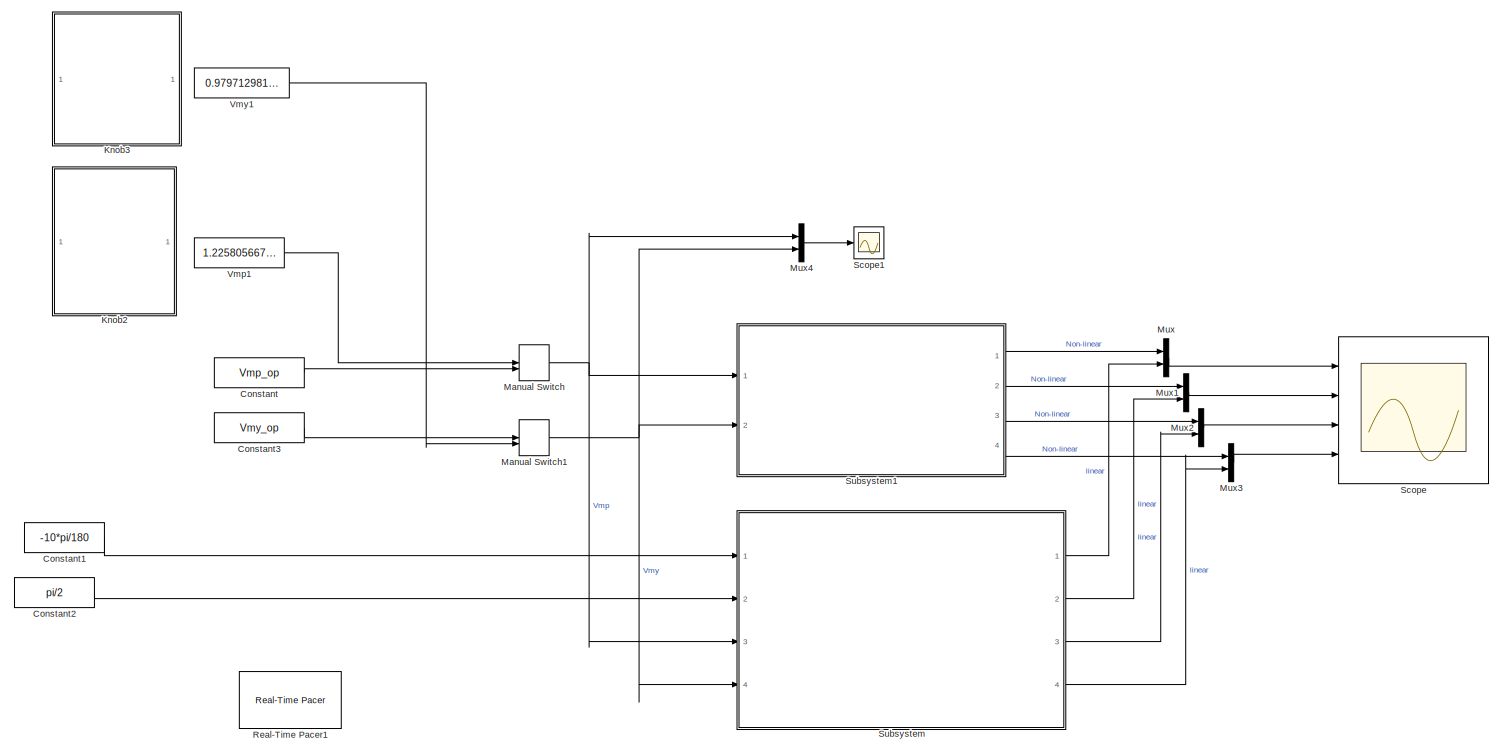
[diagram: root canvas - part 1/1, most of the canvas]
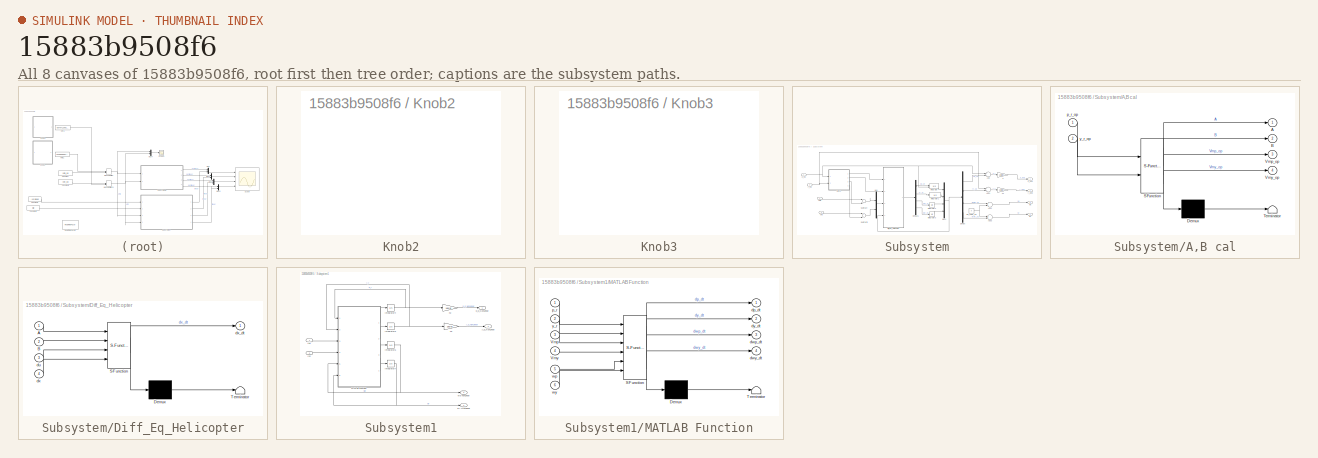
[diagram: thumbnail index - all 8 canvases of the model, root first then tree order]
MODEL slx_15883b9508f6
KIND model
CONFIG AbsTol = auto
CONFIG EnableMultiTasking = off
CONFIG FixedStep = auto
CONFIG MaxStep = auto
CONFIG MinStep = auto
CONFIG RelTol = 1e-3
CONFIG SampleTimeConstraint = Unconstrained
CONFIG Solver = VariableStepAuto
CONFIG SolverName = VariableStepAuto
CONFIG StartTime = 0.0
CONFIG StopTime = inf
BLOCK [Constant] Constant
  Value = Vmp_op
BLOCK [Constant] Constant1
  Value = -10*pi/180
BLOCK [Constant] Constant2
  Value = pi/2
BLOCK [Constant] Constant3
  Value = Vmy_op
BLOCK [SubSystem] Knob2
  DialogController = hmiCreateDDGDialog
  IsWebBlock = on
  MaskHideContents = on
  Ports = []
  RequestExecContextInheritance = off
BLOCK [SubSystem] Knob3
  DialogController = hmiCreateDDGDialog
  IsWebBlock = on
  MaskHideContents = on
  Ports = []
  RequestExecContextInheritance = off
BLOCK [ManualSwitch] Manual Switch
BLOCK [ManualSwitch] Manual Switch1
  CurrentSetting = 0
BLOCK [Mux] Mux
  DisplayOption = bar
  Inputs = 2
  Ports = [2, 1]
BLOCK [Mux] Mux1
  DisplayOption = bar
  Inputs = 2
  Ports = [2, 1]
BLOCK [Mux] Mux2
  DisplayOption = bar
  Inputs = 2
  Ports = [2, 1]
BLOCK [Mux] Mux3
  DisplayOption = bar
  Inputs = 2
  Ports = [2, 1]
BLOCK [Mux] Mux4
  DisplayOption = bar
  Inputs = 2
  Ports = [2, 1]
BLOCK [Reference] Real-Time Pacer1  REF=realtime_pacer_lib/Real-Time Pacer
  Ports = []
  SourceBlock = realtime_pacer_lib/Real-Time Pacer
  SourceType = RealTime_Pacer
BLOCK [Scope] Scope
  Floating = off
  NumInputPorts = 4
  Ports = [4]
  ScopeSpecificationString = Simulink.scopes.TimeScopeBlockCfg('CurrentConfiguration', extmgr.ConfigurationSet(extmgr.Configuration('Core','General UI',true,'FigureColor',[1 1 1]),extmgr.Configuration('Core','Source UI',true),extmgr.Configuration('Sources','WiredSimulink',true),extmgr.Configuration('Visuals','Time Domain',true,'SerializedDisplays',{struct('MinYLimReal','-50','MaxYLimReal','50','YLabelReal','Pitch Angle (Degre...<+7195ch>
BLOCK [Scope] Scope1
  Floating = off
  NumInputPorts = 1
  Ports = [1]
  ScopeSpecificationString = Simulink.scopes.TimeScopeBlockCfg('CurrentConfiguration', extmgr.ConfigurationSet(extmgr.Configuration('Core','General UI',true,'FigureColor',[1 1 1]),extmgr.Configuration('Core','Source UI',true),extmgr.Configuration('Sources','WiredSimulink',true,'DataLoggingVariableName','ScopeData1'),extmgr.Configuration('Visuals','Time Domain',true,'SerializedDisplays',{struct('MinYLimReal','0.52565','MaxYLim...<+1791ch>
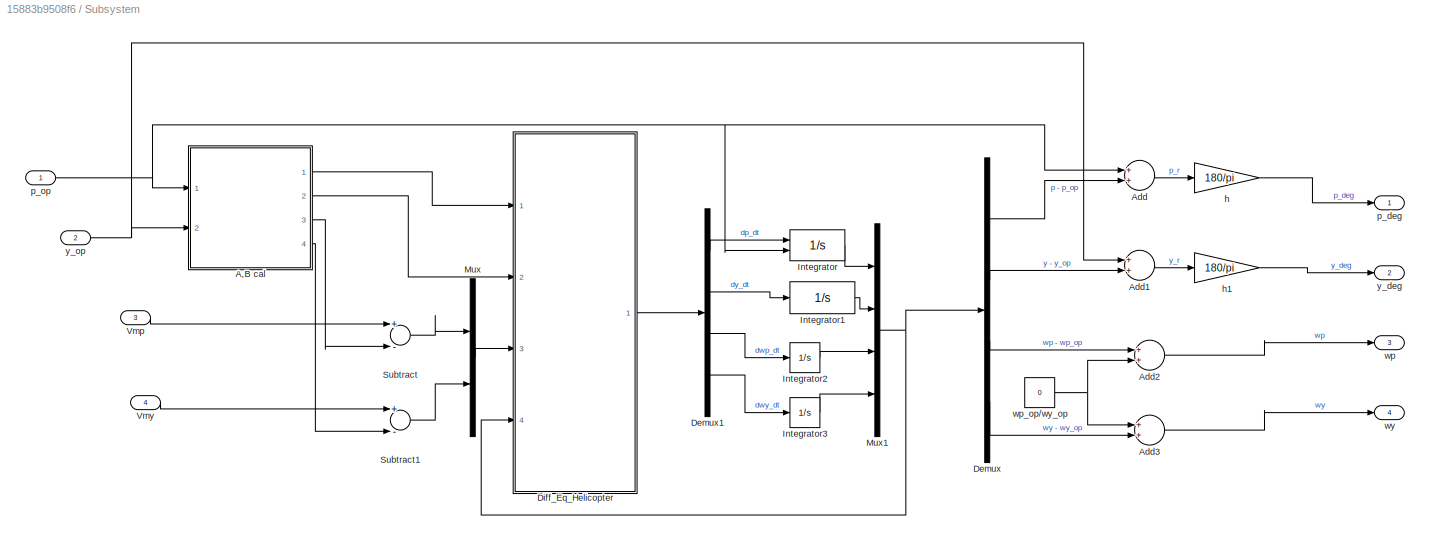
BLOCK [SubSystem] Subsystem
  Ports = [4, 4]
  RequestExecContextInheritance = off
BLOCK [SubSystem] Subsystem/A,B cal
  ErrorFcn = Stateflow.Translate.translate
  PermitHierarchicalResolution = ExplicitOnly
  Ports = [2, 4]
  RequestExecContextInheritance = off
  SFBlockType = MATLAB Function
  TreatAsAtomicUnit = on
BLOCK [Demux] Subsystem/A,B cal/ Demux 
  Outputs = 1
  Ports = [1, 1]
BLOCK [S-Function] Subsystem/A,B cal/ SFunction 
  EnableBusSupport = on
  FunctionName = sf_sfun
  Parameters = Bp,By,g,jeqp,jeqy,kpp,kpy,kyp,kyy,lcm,mheli
  PortCounts = [2 5]
  Ports = [2, 5]
  SFcnIsStateOwnerBlock = off
  SFunctionDeploymentMode = off
  Tag = Stateflow S-Function Helicopter_comparison 2
BLOCK [Terminator] Subsystem/A,B cal/ Terminator 
BLOCK [Outport] Subsystem/A,B cal/A
  IconDisplay = Port number
BLOCK [Outport] Subsystem/A,B cal/B
  IconDisplay = Port number
  Port = 2
BLOCK [Outport] Subsystem/A,B cal/Vmp_op
  IconDisplay = Port number
  Port = 3
BLOCK [Outport] Subsystem/A,B cal/Vmy_op
  IconDisplay = Port number
  Port = 4
BLOCK [Inport] Subsystem/A,B cal/p_r_op
  IconDisplay = Port number
BLOCK [Inport] Subsystem/A,B cal/y_r_op
  IconDisplay = Port number
  Port = 2
BLOCK [Sum] Subsystem/Add
  InputSameDT = off
  OutDataTypeStr = Inherit: Inherit via internal rule
  Ports = [2, 1]
  SaturateOnIntegerOverflow = off
BLOCK [Sum] Subsystem/Add1
  InputSameDT = off
  OutDataTypeStr = Inherit: Inherit via internal rule
  Ports = [2, 1]
  SaturateOnIntegerOverflow = off
BLOCK [Sum] Subsystem/Add2
  InputSameDT = off
  OutDataTypeStr = Inherit: Inherit via internal rule
  Ports = [2, 1]
  SaturateOnIntegerOverflow = off
BLOCK [Sum] Subsystem/Add3
  InputSameDT = off
  OutDataTypeStr = Inherit: Inherit via internal rule
  Ports = [2, 1]
  SaturateOnIntegerOverflow = off
BLOCK [Demux] Subsystem/Demux
  DisplayOption = bar
  Ports = [1, 4]
BLOCK [Demux] Subsystem/Demux1
  DisplayOption = bar
  Ports = [1, 4]
BLOCK [SubSystem] Subsystem/Diff_Eq_Helicopter
  ErrorFcn = Stateflow.Translate.translate
  PermitHierarchicalResolution = ExplicitOnly
  Ports = [4, 1]
  RequestExecContextInheritance = off
  SFBlockType = MATLAB Function
  TreatAsAtomicUnit = on
BLOCK [Demux] Subsystem/Diff_Eq_Helicopter/ Demux 
  Outputs = 1
  Ports = [1, 1]
BLOCK [S-Function] Subsystem/Diff_Eq_Helicopter/ SFunction 
  EnableBusSupport = on
  FunctionName = sf_sfun
  PortCounts = [4 2]
  Ports = [4, 2]
  SFcnIsStateOwnerBlock = off
  SFunctionDeploymentMode = off
  Tag = Stateflow S-Function Helicopter_comparison 1
BLOCK [Terminator] Subsystem/Diff_Eq_Helicopter/ Terminator 
BLOCK [Inport] Subsystem/Diff_Eq_Helicopter/A
  IconDisplay = Port number
BLOCK [Inport] Subsystem/Diff_Eq_Helicopter/B
  IconDisplay = Port number
  Port = 2
BLOCK [Inport] Subsystem/Diff_Eq_Helicopter/du
  IconDisplay = Port number
  Port = 3
BLOCK [Inport] Subsystem/Diff_Eq_Helicopter/dx
  IconDisplay = Port number
  Port = 4
BLOCK [Outport] Subsystem/Diff_Eq_Helicopter/dx_dt
  IconDisplay = Port number
BLOCK [Integrator] Subsystem/Integrator
  InitialCondition = -10*pi/180
  InitialConditionSource = external
  LimitOutput = on
  LowerSaturationLimit = -pi/4 - (-10*pi/180)
  Ports = [2, 1]
  UpperSaturationLimit = pi/4 - (-10*pi/180)
BLOCK [Integrator] Subsystem/Integrator1
  LimitOutput = on
  LowerSaturationLimit = 0 - (pi/2)
  Ports = [1, 1]
  UpperSaturationLimit = pi - (pi/2)
BLOCK [Integrator] Subsystem/Integrator2
  Ports = [1, 1]
  UpperSaturationLimit = pi
BLOCK [Integrator] Subsystem/Integrator3
  Ports = [1, 1]
BLOCK [Mux] Subsystem/Mux
  DisplayOption = bar
  Inputs = 2
  Ports = [2, 1]
BLOCK [Mux] Subsystem/Mux1
  DisplayOption = bar
  Ports = [4, 1]
BLOCK [Sum] Subsystem/Subtract
  InputSameDT = off
  Inputs = +-
  OutDataTypeStr = Inherit: Inherit via internal rule
  Ports = [2, 1]
  SaturateOnIntegerOverflow = off
BLOCK [Sum] Subsystem/Subtract1
  InputSameDT = off
  Inputs = +-
  OutDataTypeStr = Inherit: Inherit via internal rule
  Ports = [2, 1]
  SaturateOnIntegerOverflow = off
BLOCK [Inport] Subsystem/Vmp
  IconDisplay = Port number
  Port = 3
BLOCK [Inport] Subsystem/Vmy
  IconDisplay = Port number
  Port = 4
BLOCK [Gain] Subsystem/h
  Gain = 180/pi
  OutDataTypeStr = Inherit: Inherit via internal rule
  ParamDataTypeStr = Inherit: Inherit via internal rule
  SaturateOnIntegerOverflow = off
BLOCK [Gain] Subsystem/h1
  Gain = 180/pi
  OutDataTypeStr = Inherit: Inherit via internal rule
  ParamDataTypeStr = Inherit: Inherit via internal rule
  SaturateOnIntegerOverflow = off
BLOCK [Outport] Subsystem/p_deg
  IconDisplay = Port number
BLOCK [Inport] Subsystem/p_op
  IconDisplay = Port number
BLOCK [Outport] Subsystem/wp
  IconDisplay = Port number
  Port = 3
BLOCK [Constant] Subsystem/wp_op//wy_op
  Value = 0
BLOCK [Outport] Subsystem/wy
  IconDisplay = Port number
  Port = 4
BLOCK [Outport] Subsystem/y_deg
  IconDisplay = Port number
  Port = 2
BLOCK [Inport] Subsystem/y_op
  IconDisplay = Port number
  Port = 2
BLOCK [SubSystem] Subsystem1
  Ports = [2, 4]
  RequestExecContextInheritance = off
BLOCK [Inport] Subsystem1/In1
  IconDisplay = Port number
BLOCK [Inport] Subsystem1/In2
  IconDisplay = Port number
  Port = 2
BLOCK [Integrator] Subsystem1/Integrator4
  InitialCondition = -10*pi/180
  LimitOutput = on
  LowerSaturationLimit = -pi/4
  Ports = [1, 1]
  UpperSaturationLimit = pi/4
BLOCK [Integrator] Subsystem1/Integrator5
  InitialCondition = pi/2
  LimitOutput = on
  LowerSaturationLimit = 0
  Ports = [1, 1]
  UpperSaturationLimit = pi
BLOCK [Integrator] Subsystem1/Integrator6
  Ports = [1, 1]
BLOCK [Integrator] Subsystem1/Integrator7
  Ports = [1, 1]
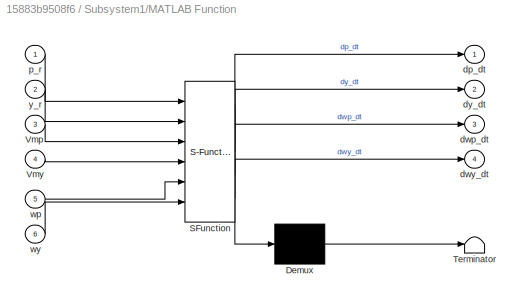
BLOCK [SubSystem] Subsystem1/MATLAB Function
  ErrorFcn = Stateflow.Translate.translate
  PermitHierarchicalResolution = ExplicitOnly
  Ports = [6, 4]
  RequestExecContextInheritance = off
  SFBlockType = MATLAB Function
  TreatAsAtomicUnit = on
BLOCK [Demux] Subsystem1/MATLAB Function/ Demux 
  Outputs = 1
  Ports = [1, 1]
BLOCK [S-Function] Subsystem1/MATLAB Function/ SFunction 
  EnableBusSupport = on
  FunctionName = sf_sfun
  Parameters = Bp,By,g,jeqp,jeqy,kpp,kpy,kyp,kyy,lcm,mheli
  PortCounts = [6 5]
  Ports = [6, 5]
  SFcnIsStateOwnerBlock = off
  SFunctionDeploymentMode = off
  Tag = Stateflow S-Function Helicopter_comparison 3
BLOCK [Terminator] Subsystem1/MATLAB Function/ Terminator 
BLOCK [Inport] Subsystem1/MATLAB Function/Vmp
  IconDisplay = Port number
  Port = 3
BLOCK [Inport] Subsystem1/MATLAB Function/Vmy
  IconDisplay = Port number
  Port = 4
BLOCK [Outport] Subsystem1/MATLAB Function/dp_dt
  IconDisplay = Port number
BLOCK [Outport] Subsystem1/MATLAB Function/dwp_dt
  IconDisplay = Port number
  Port = 3
BLOCK [Outport] Subsystem1/MATLAB Function/dwy_dt
  IconDisplay = Port number
  Port = 4
BLOCK [Outport] Subsystem1/MATLAB Function/dy_dt
  IconDisplay = Port number
  Port = 2
BLOCK [Inport] Subsystem1/MATLAB Function/p_r
  IconDisplay = Port number
BLOCK [Inport] Subsystem1/MATLAB Function/wp
  IconDisplay = Port number
  Port = 5
BLOCK [Inport] Subsystem1/MATLAB Function/wy
  IconDisplay = Port number
  Port = 6
BLOCK [Inport] Subsystem1/MATLAB Function/y_r
  IconDisplay = Port number
  Port = 2
BLOCK [Gain] Subsystem1/h2
  Gain = 180/pi
  OutDataTypeStr = Inherit: Inherit via internal rule
  ParamDataTypeStr = Inherit: Inherit via internal rule
  SaturateOnIntegerOverflow = off
BLOCK [Gain] Subsystem1/h3
  Gain = 180/pi
  OutDataTypeStr = Inherit: Inherit via internal rule
  ParamDataTypeStr = Inherit: Inherit via internal rule
  SaturateOnIntegerOverflow = off
BLOCK [Outport] Subsystem1/p_d_NonLinear
  IconDisplay = Port number
BLOCK [Outport] Subsystem1/wp nonLinear
  IconDisplay = Port number
  Port = 3
BLOCK [Outport] Subsystem1/wy NonLinear
  IconDisplay = Port number
  Port = 4
BLOCK [Outport] Subsystem1/y_d_NonLinear
  IconDisplay = Port number
  Port = 2
BLOCK [Constant] Vmp1
  Value = 1.2258056673101
BLOCK [Constant] Vmy1
  Value = 0.9797129816804
LINE Constant1:1 -> Subsystem:1
LINE Constant2:1 -> Subsystem:2
LINE Constant3:1 -> Manual Switch1:1
LINE Constant:1 -> Manual Switch:2
NET Manual Switch1:1 -> Mux4:2, Subsystem1:2, Subsystem:4
NET Manual Switch:1 -> Mux4:1, Subsystem1:1, Subsystem:3
LINE Mux1:1 -> Scope:2
LINE Mux2:1 -> Scope:3
LINE Mux3:1 -> Scope:4
LINE Mux4:1 -> Scope1:1
LINE Mux:1 -> Scope:1
LINE Subsystem/A,B cal:1 -> Subsystem/Diff_Eq_Helicopter:1
LINE Subsystem/A,B cal:2 -> Subsystem/Diff_Eq_Helicopter:2
LINE Subsystem/A,B cal:3 -> Subsystem/Subtract:2
LINE Subsystem/A,B cal:4 -> Subsystem/Subtract1:2
LINE Subsystem/Add1:1 -> Subsystem/h1:1
LINE Subsystem/Add2:1 -> Subsystem/wp:1
LINE Subsystem/Add3:1 -> Subsystem/wy:1
LINE Subsystem/Add:1 -> Subsystem/h:1
LINE Subsystem/Demux1:1 -> Subsystem/Integrator:1
LINE Subsystem/Demux1:2 -> Subsystem/Integrator1:1
LINE Subsystem/Demux1:3 -> Subsystem/Integrator2:1
LINE Subsystem/Demux1:4 -> Subsystem/Integrator3:1
LINE Subsystem/Demux:1 -> Subsystem/Add:2
LINE Subsystem/Demux:2 -> Subsystem/Add1:2
LINE Subsystem/Demux:3 -> Subsystem/Add2:1
LINE Subsystem/Demux:4 -> Subsystem/Add3:2
LINE Subsystem/Diff_Eq_Helicopter:1 -> Subsystem/Demux1:1
LINE Subsystem/Integrator1:1 -> Subsystem/Mux1:2
LINE Subsystem/Integrator2:1 -> Subsystem/Mux1:3
LINE Subsystem/Integrator3:1 -> Subsystem/Mux1:4
LINE Subsystem/Integrator:1 -> Subsystem/Mux1:1
NET Subsystem/Mux1:1 -> Subsystem/Demux:1, Subsystem/Diff_Eq_Helicopter:4
LINE Subsystem/Mux:1 -> Subsystem/Diff_Eq_Helicopter:3
LINE Subsystem/Subtract1:1 -> Subsystem/Mux:2
LINE Subsystem/Subtract:1 -> Subsystem/Mux:1
LINE Subsystem/Vmp:1 -> Subsystem/Subtract:1
LINE Subsystem/Vmy:1 -> Subsystem/Subtract1:1
LINE Subsystem/h1:1 -> Subsystem/y_deg:1
LINE Subsystem/h:1 -> Subsystem/p_deg:1
NET Subsystem/p_op:1 -> Subsystem/A,B cal:1, Subsystem/Add:1, Subsystem/Integrator:2
NET Subsystem/wp_op//wy_op:1 -> Subsystem/Add2:2, Subsystem/Add3:1
NET Subsystem/y_op:1 -> Subsystem/A,B cal:2, Subsystem/Add1:1
LINE Subsystem1/In1:1 -> Subsystem1/MATLAB Function:3
LINE Subsystem1/In2:1 -> Subsystem1/MATLAB Function:4
NET Subsystem1/Integrator4:1 -> Subsystem1/MATLAB Function:1, Subsystem1/h2:1
NET Subsystem1/Integrator5:1 -> Subsystem1/MATLAB Function:2, Subsystem1/h3:1
NET Subsystem1/Integrator6:1 -> Subsystem1/MATLAB Function:5, Subsystem1/wp nonLinear:1
NET Subsystem1/Integrator7:1 -> Subsystem1/MATLAB Function:6, Subsystem1/wy NonLinear:1
LINE Subsystem1/MATLAB Function:1 -> Subsystem1/Integrator4:1
LINE Subsystem1/MATLAB Function:2 -> Subsystem1/Integrator5:1
LINE Subsystem1/MATLAB Function:3 -> Subsystem1/Integrator6:1
LINE Subsystem1/MATLAB Function:4 -> Subsystem1/Integrator7:1
LINE Subsystem1/h2:1 -> Subsystem1/p_d_NonLinear:1
LINE Subsystem1/h3:1 -> Subsystem1/y_d_NonLinear:1
LINE Subsystem1:1 -> Mux:1
LINE Subsystem1:2 -> Mux1:1
LINE Subsystem1:3 -> Mux2:1
LINE Subsystem1:4 -> Mux3:1
LINE Subsystem:1 -> Mux:2
LINE Subsystem:2 -> Mux1:2
LINE Subsystem:3 -> Mux2:2
LINE Subsystem:4 -> Mux3:2
LINE Vmp1:1 -> Manual Switch:1
LINE Vmy1:1 -> Manual Switch1:2
note: NET lines group one-source signal fan-out (src -> all destinations, sorted); 1:1 wires keep LINE
CHART Subsystem/Diff_Eq_Helicopter states=1 transitions=1
  STATE_LABEL 'eML_blk_kernel()'
  STATE_LABEL 'SCRIPT:\nfunction dx_dt = fcn(A,B,du,dx)\n\ndx_dt =A*dx + B*(du);\n'
CHART Subsystem/A,B cal states=1 transitions=1
  STATE_LABEL 'eML_blk_kernel()'
  STATE_LABEL 'SCRIPT:\nfunction [A,B,Vmp_op,Vmy_op] = fcn(p_r_op,y_r_op, lcm, mheli, jeqp, jeqy, g, kpp, kyy, kyp, Bp, By, kpy)\n\n\n\nVmp_op = (kyy*mheli*g*cos(p_r_op)*lcm)/(kyy*kpp -kyp*kpy);\nVmy_op = kyp*Vmp_op/kyy;\n%% A and B\n%A\nA1_3 = 1;\n\nA2_4 = 1;\n\nA3_1 = mheli*g*lcm*sin(p_r_op)/(jeqp +mheli*lcm*lcm);\nA3_3 = -Bp/(jeqp +mheli*lcm*lcm);\n\nA4_1_n = (kyp*Vmp_op -kyy*Vmy_op)*2*mheli*lcm*lcm*sin(p_r_op)*cos(p_r_op);\n...<+514ch>'
CHART Subsystem1/MATLAB Function states=1 transitions=1
  STATE_LABEL 'eML_blk_kernel()'
  STATE_LABEL 'SCRIPT:\nfunction [dp_dt, dy_dt, dwp_dt, dwy_dt]= fcn(p_r,y_r,Vmp, Vmy,wp,wy, lcm, mheli, jeqp, jeqy, g, kpp, kyy,kyp, Bp, By, kpy)\n  %%Parameters\n%   \n%   Bp,\n%   By,\n%   g,\n%   kpp,\n%   kyp,\n%   kyy,\n%   kpy,\n%   mheli,\n%   lcm,\n%   jeqp,\n%   jeqy,\n  \n\n%%\n   dp_dt = wp;\n   dy_dt = wy;\n   \n   %%\n   dwp_dt_n1 = (kpp*Vmp);\n   dwp_dt_n2 = (kpy*Vmy);\n   dwp_dt_n3 = (Bp*wp+ (mheli*(wy.^2)*sin(p_r)*(lcm...<+417ch>'
